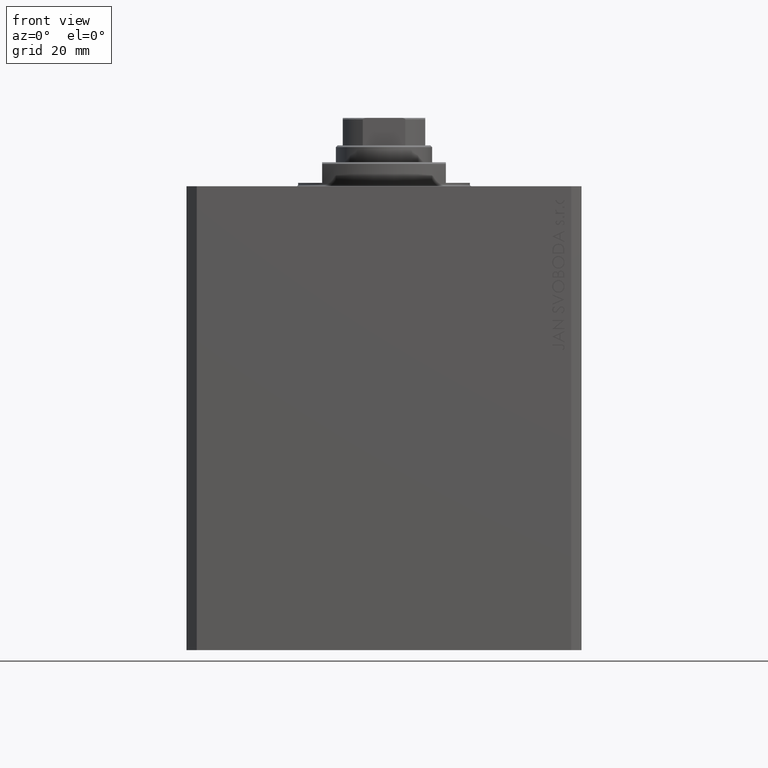
[diagram: clean part render]
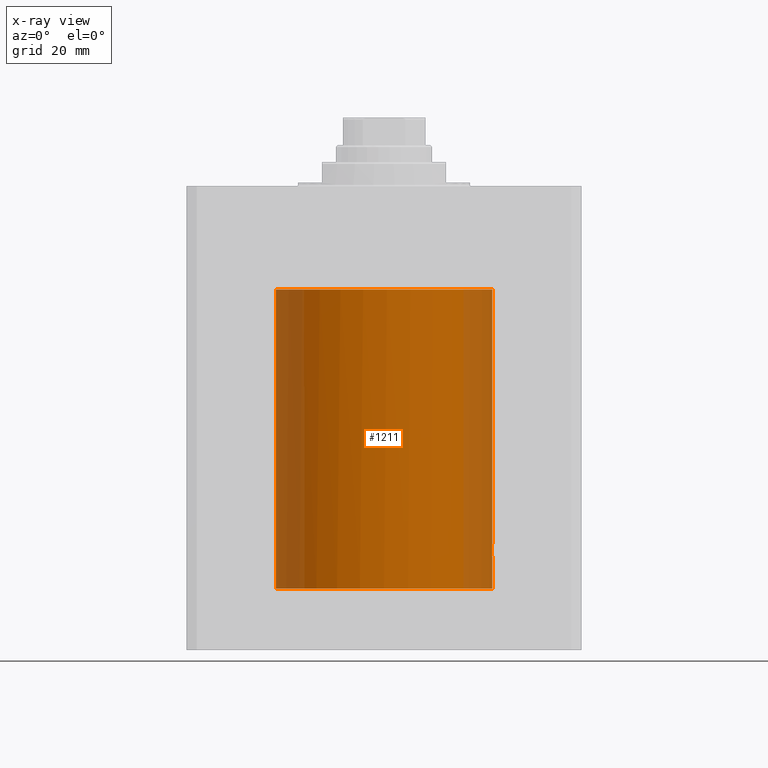
[diagram: x-ray — body ghosted, one internal face saturated and labeled with its STEP entity id]
A machine part, front view, then the same camera in x-ray: the body is ghosted and one INTERNAL B-rep face — a face not visible from any outside direction — is saturated and labeled: STEP entity #1211.
In plain terms, the highlighted cylindrical surface (partial cylindrical patch) has radius 31.5 mm, axis along (0, 0, 1).
Its self-contained STEP definition (entity closure, byte-faithful):
#106 = DIRECTION ( 'NONE',  ( -0.000000000000000000, -0.000000000000000000, 1.000000000000000000 ) ) ;
#380 = B_SPLINE_CURVE_WITH_KNOTS ( 'NONE', 3,
 ( #28875, #11962, #8337, #4270, #22341, #38561, #22119, #15349, #39472, #18957 ),
 .UNSPECIFIED., .F., .F.,
 ( 4, 2, 2, 2, 4 ),
 ( 0.001968471068081006393, 0.002460037929978832645, 0.002951604791876658897, 0.003443171653774484281, 0.003934738515672310533 ),
 .UNSPECIFIED. ) ;
#1107 = CARTESIAN_POINT ( 'NONE',  ( 31.48773138987391462, -0.8872616597623501633, -107.7971399355613755 ) ) ;
#1154 = CARTESIAN_POINT ( 'NONE',  ( 31.44872486828352720, -1.797284557493781243, -105.1129049671613274 ) ) ;
#1211 = ADVANCED_FACE ( 'NONE', ( #38594 ), #34763, .F. ) ;
#1381 = CARTESIAN_POINT ( 'NONE',  ( 31.45222028857342522, -1.735837506356491033, -104.9980120116594122 ) ) ;
#1609 = CARTESIAN_POINT ( 'NONE',  ( 31.45990289235030346, -1.590535423469516152, -104.7804472770964139 ) ) ;
#1884 = VERTEX_POINT ( 'NONE', #26251 ) ;
#3147 = CIRCLE ( 'NONE', #37007, 31.50000000000000000 ) ;
#4270 = CARTESIAN_POINT ( 'NONE',  ( -31.49373816518793134, -0.6479030711830476852, -30.89924871676793572 ) ) ;
#4481 = CARTESIAN_POINT ( 'NONE',  ( 31.46407444263389053, -1.506829553733667559, -107.3215416408483520 ) ) ;
#4754 = CARTESIAN_POINT ( 'NONE',  ( 31.43727534210788477, -1.987050037257513280, -105.7380122185808489 ) ) ;
#5124 = DIRECTION ( 'NONE',  ( -0.000000000000000000, -0.000000000000000000, 1.000000000000000000 ) ) ;
#5401 = VERTEX_POINT ( 'NONE', #15415 ) ;
#5599 = ORIENTED_EDGE ( 'NONE', *, *, #31431, .T. ) ;
#5915 = AXIS2_PLACEMENT_3D ( 'NONE', #40100, #12380, #15994 ) ;
#6685 = CARTESIAN_POINT ( 'NONE',  ( -31.50000000000000000, 3.857637417314162689E-15, -117.0999999999999943 ) ) ;
#8139 = CARTESIAN_POINT ( 'NONE',  ( 31.44044773446764296, -1.936206353227569288, -105.4822062129580615 ) ) ;
#8337 = CARTESIAN_POINT ( 'NONE',  ( -31.49867665059924349, -0.3296835877876421184, -30.97945265407803461 ) ) ;
#9443 = EDGE_CURVE ( 'NONE', #5401, #36157, #36024, .T. ) ;
#10173 = EDGE_CURVE ( 'NONE', #14597, #19965, #380, .T. ) ;
#10704 = LINE ( 'NONE', #28075, #38197 ) ;
#11480 = CARTESIAN_POINT ( 'NONE',  ( 31.50000000000000711, -0.2641644753935984968, -107.9999999999999858 ) ) ;
#11528 = CARTESIAN_POINT ( 'NONE',  ( 31.50000000000000000, -8.369814204394935255E-24, -104.0000000000000142 ) ) ;
#11762 = CARTESIAN_POINT ( 'NONE',  ( 31.49655533253666206, -0.5244229631002979009, -104.0524611924346203 ) ) ;
#11962 = CARTESIAN_POINT ( 'NONE',  ( -31.49999999999999289, -0.1655884372801700033, -30.99999999999999645 ) ) ;
#11991 = CARTESIAN_POINT ( 'NONE',  ( 31.47654718428505305, -1.229266569362845063, -104.4009491226104984 ) ) ;
#12085 = CARTESIAN_POINT ( 'NONE',  ( -31.50000000000000000, 3.857542963677526976E-15, -30.99999999999999645 ) ) ;
#12380 = DIRECTION ( 'NONE',  ( 0.000000000000000000, 0.000000000000000000, 1.000000000000000000 ) ) ;
#14133 = AXIS2_PLACEMENT_3D ( 'NONE', #20785, #17194, #41527 ) ;
#14597 = VERTEX_POINT ( 'NONE', #12085 ) ;
#14869 = CARTESIAN_POINT ( 'NONE',  ( 31.49651623355827113, -0.5266027764248432108, -107.9469130230594800 ) ) ;
#14915 = CARTESIAN_POINT ( 'NONE',  ( 31.43644381923632736, -1.999999999999602318, -106.0000000000000142 ) ) ;
#15349 = CARTESIAN_POINT ( 'NONE',  ( -31.46581512805850878, -1.472196347977704489, -30.36379586281064391 ) ) ;
#15415 = CARTESIAN_POINT ( 'NONE',  ( 31.50000000000000000, -8.369814204394935255E-24, -104.0000000000000142 ) ) ;
#15685 = EDGE_CURVE ( 'NONE', #1884, #32070, #16009, .T. ) ;
#15789 = EDGE_LOOP ( 'NONE', ( #42398, #34246, #36764, #41074, #38434, #5599, #25288, #18925 ) ) ;
#15994 = DIRECTION ( 'NONE',  ( 1.000000000000000000, 0.000000000000000000, 0.000000000000000000 ) ) ;
#16009 = LINE ( 'NONE', #32907, #38134 ) ;
#17194 = DIRECTION ( 'NONE',  ( -0.000000000000000000, -0.000000000000000000, 1.000000000000000000 ) ) ;
#18257 = CARTESIAN_POINT ( 'NONE',  ( 31.47236300924845764, -1.322453193766295110, -107.5060296022319477 ) ) ;
#18925 = ORIENTED_EDGE ( 'NONE', *, *, #15685, .F. ) ;
#18957 = CARTESIAN_POINT ( 'NONE',  ( -31.45568311132346295, -1.670329308848988559, -30.10000000000000142 ) ) ;
#18988 = EDGE_CURVE ( 'NONE', #20963, #14597, #10704, .T. ) ;
#19965 = VERTEX_POINT ( 'NONE', #25382 ) ;
#20785 = CARTESIAN_POINT ( 'NONE',  ( 0.000000000000000000, 0.000000000000000000, -117.0999999999999943 ) ) ;
#20963 = VERTEX_POINT ( 'NONE', #6685 ) ;
#21555 = DIRECTION ( 'NONE',  ( 1.000000000000000000, 0.000000000000000000, 0.000000000000000000 ) ) ;
#22019 = DIRECTION ( 'NONE',  ( 0.000000000000000000, 0.000000000000000000, 1.000000000000000000 ) ) ;
#22119 = CARTESIAN_POINT ( 'NONE',  ( -31.47627458383467314, -1.228422599595581310, -30.58690868017701447 ) ) ;
#22341 = CARTESIAN_POINT ( 'NONE',  ( -31.49005987750268787, -0.8043438504957256541, -30.83844943808289329 ) ) ;
#22699 = VERTEX_POINT ( 'NONE', #27952 ) ;
#25019 = CARTESIAN_POINT ( 'NONE',  ( 31.44871262113419519, -1.797498854984184824, -106.8866739720063066 ) ) ;
#25067 = CARTESIAN_POINT ( 'NONE',  ( 31.43644381923633446, -1.999999999999602318, -105.8679496573550551 ) ) ;
#25241 = CARTESIAN_POINT ( 'NONE',  ( 31.50000000000000000, 2.115822464172388752E-15, -108.0000000000000142 ) ) ;
#25288 = ORIENTED_EDGE ( 'NONE', *, *, #32693, .T. ) ;
#25382 = CARTESIAN_POINT ( 'NONE',  ( -31.45568311132346295, -1.670329308848988559, -30.10000000000000142 ) ) ;
#25521 = CARTESIAN_POINT ( 'NONE',  ( 31.48485268472537513, -1.006016242866561550, -104.2518986956447549 ) ) ;
#26251 = CARTESIAN_POINT ( 'NONE',  ( 31.50000000000000000, 0.000000000000000000, -117.0999999999999943 ) ) ;
#27893 = CARTESIAN_POINT ( 'NONE',  ( 31.50000000000000000, 2.115822464172388752E-15, -108.0000000000000142 ) ) ;
#27952 = CARTESIAN_POINT ( 'NONE',  ( 31.43644381923632736, -1.999999999999602318, -106.0000000000000142 ) ) ;
#28075 = CARTESIAN_POINT ( 'NONE',  ( -31.50000000000000000, 3.857637417314162689E-15, -117.0999999999999943 ) ) ;
#28401 = CARTESIAN_POINT ( 'NONE',  ( 31.43644381923632736, -1.999999999999602318, -106.0000000000000142 ) ) ;
#28450 = CARTESIAN_POINT ( 'NONE',  ( 31.44282756203102380, -1.897662384614844600, -105.3549830607569646 ) ) ;
#28776 = CARTESIAN_POINT ( 'NONE',  ( 0.000000000000000000, 0.000000000000000000, -30.10000000000000142 ) ) ;
#28875 = CARTESIAN_POINT ( 'NONE',  ( -31.50000000000000000, 3.857542963677526976E-15, -30.99999999999999645 ) ) ;
#28901 = CARTESIAN_POINT ( 'NONE',  ( 31.50000000000000711, -0.2611678296587112147, -104.0000000000000853 ) ) ;
#31115 = EDGE_CURVE ( 'NONE', #20963, #1884, #33274, .T. ) ;
#31431 = EDGE_CURVE ( 'NONE', #5401, #22699, #34054, .T. ) ;
#31769 = CARTESIAN_POINT ( 'NONE',  ( 31.43644381923633446, -1.999999999999602318, -106.1319147674915655 ) ) ;
#31995 = CARTESIAN_POINT ( 'NONE',  ( 31.47648100377267610, -1.221906821746971739, -107.5887658252281796 ) ) ;
#32070 = VERTEX_POINT ( 'NONE', #27893 ) ;
#32684 = DIRECTION ( 'NONE',  ( -0.000000000000000000, -0.000000000000000000, 1.000000000000000000 ) ) ;
#32693 = EDGE_CURVE ( 'NONE', #22699, #32070, #36129, .T. ) ;
#32907 = CARTESIAN_POINT ( 'NONE',  ( 31.50000000000000000, 0.000000000000000000, -117.0999999999999943 ) ) ;
#33274 = CIRCLE ( 'NONE', #5915, 31.50000000000000000 ) ;
#34054 = B_SPLINE_CURVE_WITH_KNOTS ( 'NONE', 3,
 ( #11528, #28901, #11762, #25521, #11991, #39274, #1609, #1381, #1154, #28450, #8139, #4754, #25067, #14915 ),
 .UNSPECIFIED., .F., .F.,
 ( 4, 2, 2, 2, 2, 2, 4 ),
 ( 0.006254484652153861554, 0.007036517457003363916, 0.007818550261852866279, 0.008209566664277617026, 0.008600583066702367774, 0.008991599469127118521, 0.009382615871551869269 ),
 .UNSPECIFIED. ) ;
#34246 = ORIENTED_EDGE ( 'NONE', *, *, #18988, .T. ) ;
#34763 = CYLINDRICAL_SURFACE ( 'NONE', #14133, 31.50000000000000000 ) ;
#35257 = EDGE_CURVE ( 'NONE', #19965, #36157, #3147, .T. ) ;
#35380 = CARTESIAN_POINT ( 'NONE',  ( 31.45986829311679500, -1.591210340082437780, -107.2186416612215396 ) ) ;
#36024 = LINE ( 'NONE', #36254, #36654 ) ;
#36129 = B_SPLINE_CURVE_WITH_KNOTS ( 'NONE', 3,
 ( #28401, #31769, #42145, #41922, #39224, #25019, #38763, #35380, #4481, #18257, #31995, #42370, #1107, #14869, #11480, #25241 ),
 .UNSPECIFIED., .F., .F.,
 ( 4, 2, 2, 2, 2, 2, 2, 4 ),
 ( 0.009382615871551869269, 0.009773230820200031962, 0.01016384576884819466, 0.01055446071749635735, 0.01094507566614452004, 0.01133569061479268274, 0.01172630556344084543, 0.01250753546073715521 ),
 .UNSPECIFIED. ) ;
#36157 = VERTEX_POINT ( 'NONE', #38926 ) ;
#36254 = CARTESIAN_POINT ( 'NONE',  ( 31.50000000000000000, 0.000000000000000000, -117.0999999999999943 ) ) ;
#36654 = VECTOR ( 'NONE', #5124, 1000.000000000000000 ) ;
#36764 = ORIENTED_EDGE ( 'NONE', *, *, #10173, .T. ) ;
#37007 = AXIS2_PLACEMENT_3D ( 'NONE', #28776, #22019, #21555 ) ;
#38134 = VECTOR ( 'NONE', #32684, 1000.000000000000000 ) ;
#38197 = VECTOR ( 'NONE', #106, 1000.000000000000000 ) ;
#38434 = ORIENTED_EDGE ( 'NONE', *, *, #9443, .F. ) ;
#38561 = CARTESIAN_POINT ( 'NONE',  ( -31.48136485497055048, -1.092935033183744853, -30.68296119368725172 ) ) ;
#38594 = FACE_OUTER_BOUND ( 'NONE', #15789, .T. ) ;
#38763 = CARTESIAN_POINT ( 'NONE',  ( 31.45220500162104571, -1.736105959509580909, -107.0014858672019642 ) ) ;
#38926 = CARTESIAN_POINT ( 'NONE',  ( 31.50000000000000000, 0.000000000000000000, -30.10000000000000142 ) ) ;
#39224 = CARTESIAN_POINT ( 'NONE',  ( 31.44281458444439536, -1.897877411374702783, -106.6444022018091715 ) ) ;
#39274 = CARTESIAN_POINT ( 'NONE',  ( 31.46411164879456379, -1.506057066634440167, -104.6775752899322640 ) ) ;
#39472 = CARTESIAN_POINT ( 'NONE',  ( -31.46053542408843029, -1.578950434106579648, -30.23875710244716686 ) ) ;
#40100 = CARTESIAN_POINT ( 'NONE',  ( 0.000000000000000000, 0.000000000000000000, -117.0999999999999943 ) ) ;
#41074 = ORIENTED_EDGE ( 'NONE', *, *, #35257, .T. ) ;
#41527 = DIRECTION ( 'NONE',  ( 1.000000000000000000, 0.000000000000000000, 0.000000000000000000 ) ) ;
#41922 = CARTESIAN_POINT ( 'NONE',  ( 31.44044572002255933, -1.936238609098685171, -106.5176276127064057 ) ) ;
#42145 = CARTESIAN_POINT ( 'NONE',  ( 31.43727763971487832, -1.987013243169729382, -106.2621767881956600 ) ) ;
#42370 = CARTESIAN_POINT ( 'NONE',  ( 31.48419274771890741, -1.003752801430392694, -107.7348525707003830 ) ) ;
#42398 = ORIENTED_EDGE ( 'NONE', *, *, #31115, .F. ) ;